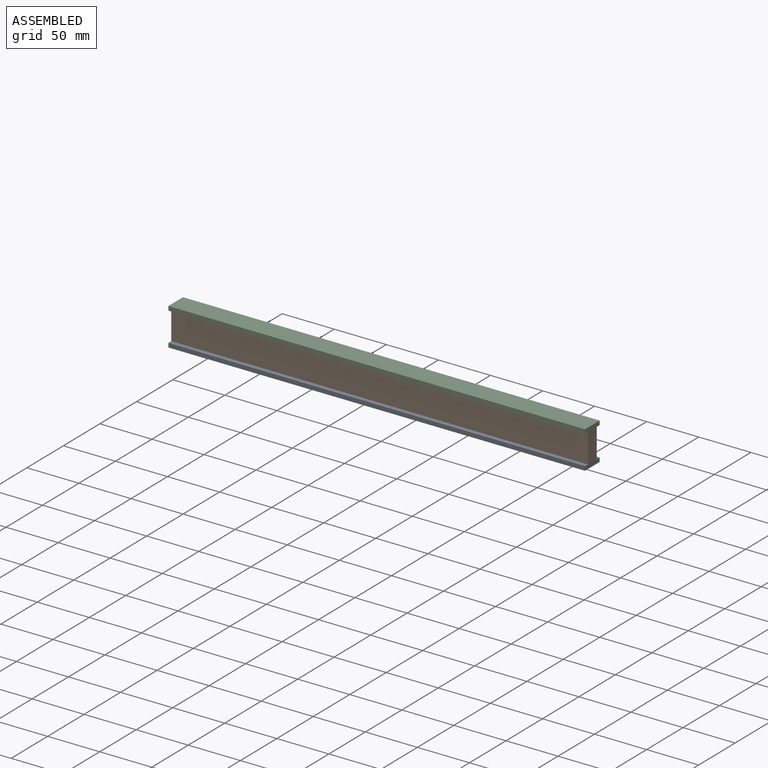
[diagram: assembled view]
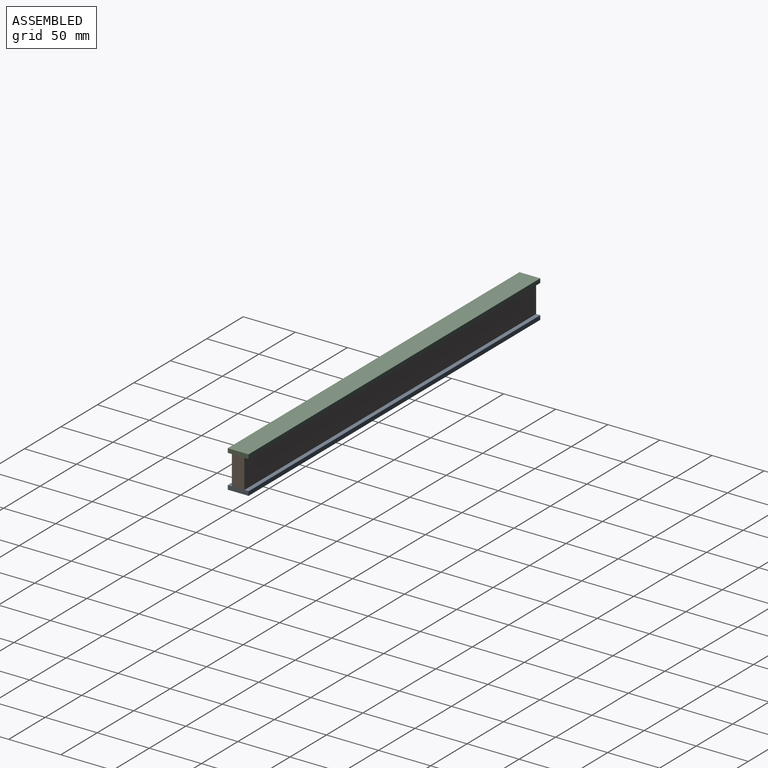
[diagram: assembled view, second angle]
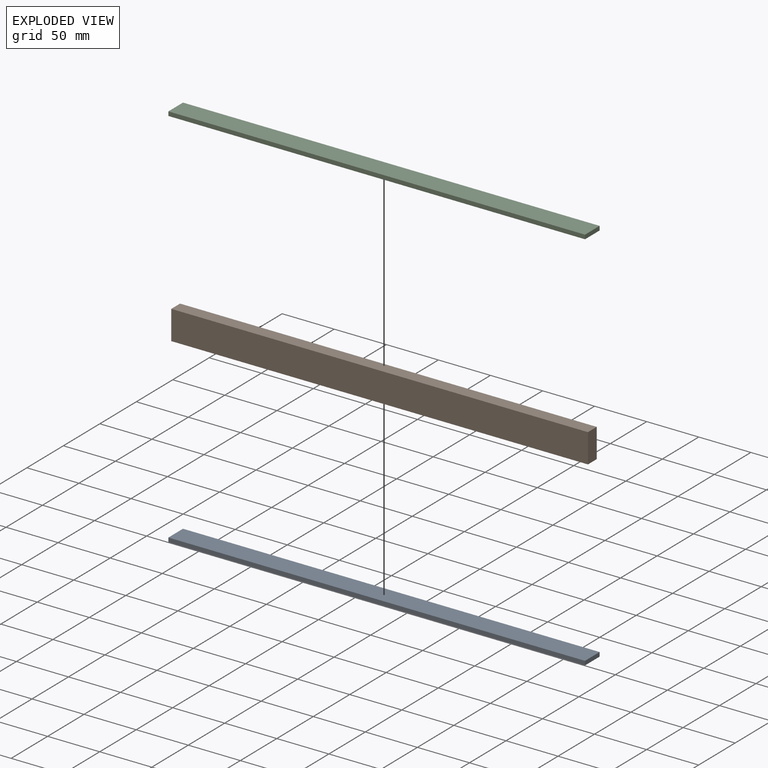
[diagram: exploded view]
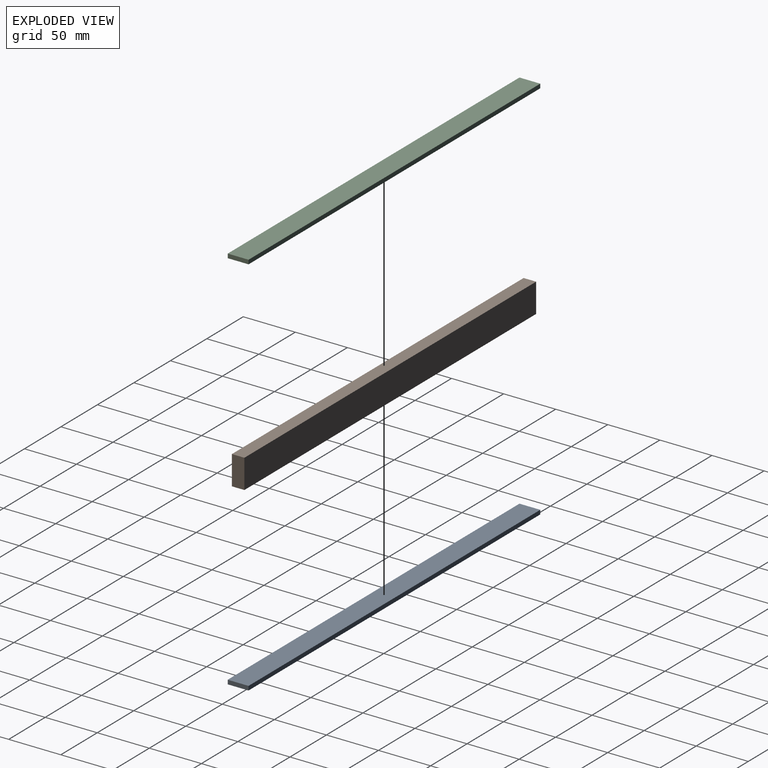
[diagram: exploded view, second angle]
ASSEMBLY  parts=3 mates=2
PART A: 6 faces, bbox 400x20x4 mm
  f0: plane 20x4mm, normal (1,0,0), area 80mm2, adj f1,f3,f4,f5
  f1: plane 400x20mm, normal (0,0,1), area 8000mm2, adj f0,f2,f4,f5
  f2: plane 20x4mm, normal (-1,0,0), area 80mm2, adj f1,f3,f4,f5
  f3: plane 400x20mm, normal (0,0,-1), area 8000mm2, adj f0,f2,f4,f5
  f4: plane 400x4mm, normal (0,-1,0), area 1600mm2, adj f0,f1,f2,f3
  f5: plane 400x4mm, normal (0,1,0), area 1600mm2, adj f0,f1,f2,f3
PART B: 6 faces, bbox 400x12x28 mm
  f0: plane 28x12mm, normal (1,0,0), area 336mm2, adj f1,f3,f4,f5
  f1: plane 400x12mm, normal (0,0,1), area 4800mm2, adj f0,f2,f4,f5
  f2: plane 28x12mm, normal (-1,0,0), area 336mm2, adj f1,f3,f4,f5
  f3: plane 400x12mm, normal (0,0,-1), area 4800mm2, adj f0,f2,f4,f5
  f4: plane 400x28mm, normal (0,-1,0), area 11200mm2, adj f0,f1,f2,f3
  f5: plane 400x28mm, normal (0,1,0), area 11200mm2, adj f0,f1,f2,f3
PART C: same geometry as A
PLACE A t=(-22.01,-40.13,119.06)mm
PLACE B t=(-22.01,-44.13,74.98)mm
PLACE C t=(-22.01,-40.13,151.06)mm
MATE fastened B.f1 <-> C.f3  axis (0,0,1) through (-222.01,-50.13,147.06)mm
MATE fastened B.f3 <-> A.f1  axis (0,0,-1) through (-222.01,-50.13,119.06)mm
